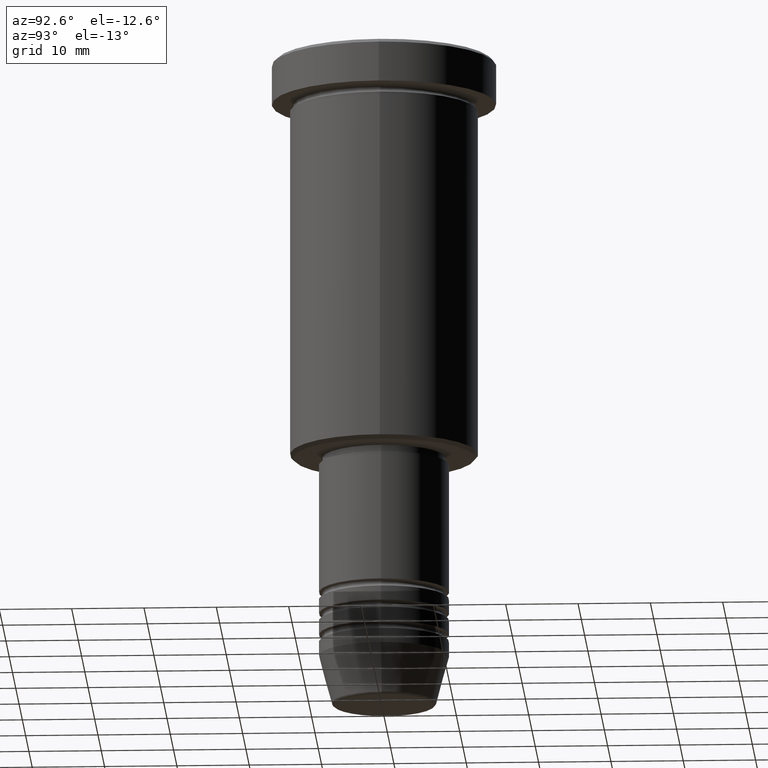
[diagram: clean part render]
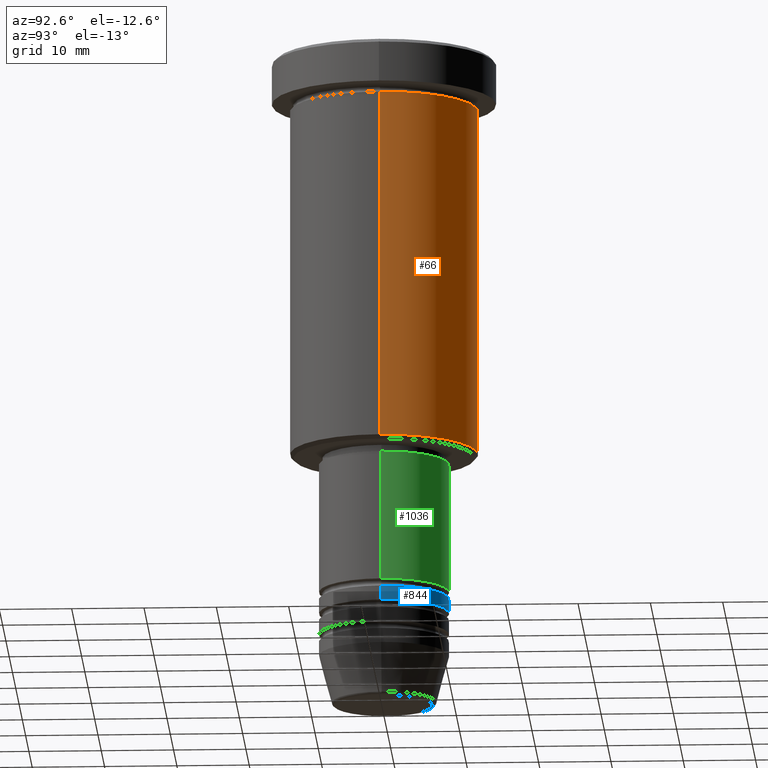
[diagram: same view with three faces highlighted in distinct colors, each labeled with its STEP entity id]
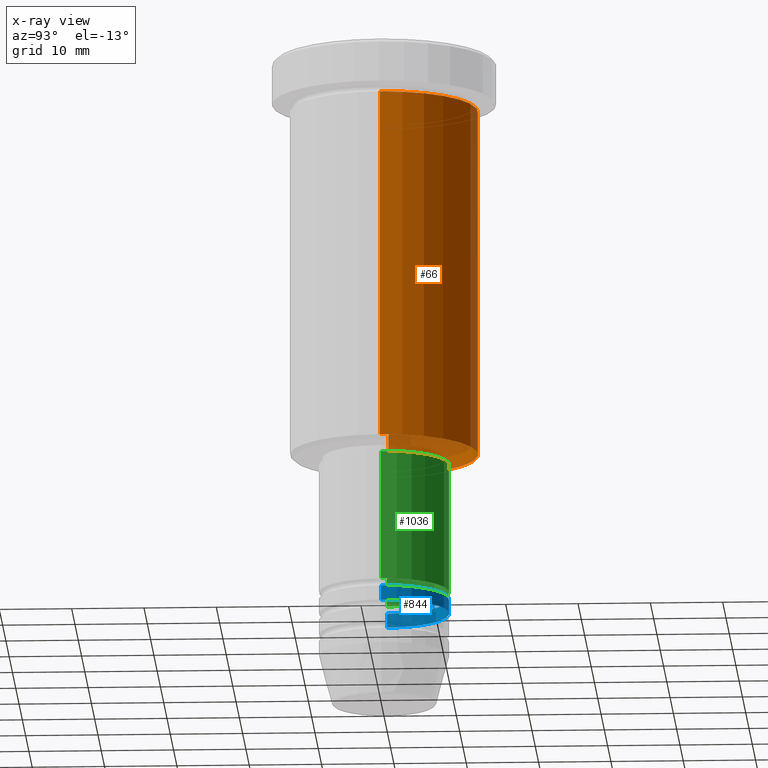
[diagram: x-ray of the same camera — body ghosted, the three highlighted faces saturated]
A machine part, auxiliary view with three faces highlighted in distinct colors.
The next image is the same camera in x-ray (body ghosted, the three faces saturated) — at least one of them is partly hidden behind the body in this view.
Their STEP definitions:

[orange] entity #66 — the highlighted cylindrical surface (partial cylindrical patch) has radius 13 mm, axis along (-0, -0, 1).
#2 = CARTESIAN_POINT ( 'NONE',  ( 0.000000000000000000, 0.000000000000000000, -55.50000000000002132 ) ) ;
#11 = EDGE_LOOP ( 'NONE', ( #40, #740, #402, #649 ) ) ;
#40 = ORIENTED_EDGE ( 'NONE', *, *, #225, .T. ) ;
#51 = DIRECTION ( 'NONE',  ( 1.000000000000000000, 0.000000000000000000, 0.000000000000000000 ) ) ;
#66 = ADVANCED_FACE ( 'NONE', ( #680 ), #704, .T. ) ;
#89 = DIRECTION ( 'NONE',  ( -0.000000000000000000, -0.000000000000000000, 1.000000000000000000 ) ) ;
#94 = DIRECTION ( 'NONE',  ( -1.000000000000000000, 0.000000000000000000, 0.000000000000000000 ) ) ;
#145 = AXIS2_PLACEMENT_3D ( 'NONE', #1164, #417, #776 ) ;
#169 = VERTEX_POINT ( 'NONE', #820 ) ;
#214 = CARTESIAN_POINT ( 'NONE',  ( 13.00000000000000000, 0.000000000000000000, 0.000000000000000000 ) ) ;
#218 = VECTOR ( 'NONE', #89, 1000.000000000000000 ) ;
#225 = EDGE_CURVE ( 'NONE', #638, #660, #435, .T. ) ;
#297 = CARTESIAN_POINT ( 'NONE',  ( -13.00000000000000000, 1.592040838891559095E-15, -55.50000000000002132 ) ) ;
#369 = DIRECTION ( 'NONE',  ( -0.000000000000000000, -0.000000000000000000, 1.000000000000000000 ) ) ;
#393 = AXIS2_PLACEMENT_3D ( 'NONE', #2, #369, #94 ) ;
#402 = ORIENTED_EDGE ( 'NONE', *, *, #951, .F. ) ;
#417 = DIRECTION ( 'NONE',  ( -0.000000000000000000, -0.000000000000000000, 1.000000000000000000 ) ) ;
#435 = CIRCLE ( 'NONE', #393, 13.00000000000000000 ) ;
#557 = VERTEX_POINT ( 'NONE', #1119 ) ;
#577 = DIRECTION ( 'NONE',  ( -0.000000000000000000, -0.000000000000000000, 1.000000000000000000 ) ) ;
#616 = LINE ( 'NONE', #913, #218 ) ;
#620 = CIRCLE ( 'NONE', #145, 13.00000000000000000 ) ;
#637 = EDGE_CURVE ( 'NONE', #660, #169, #616, .T. ) ;
#638 = VERTEX_POINT ( 'NONE', #678 ) ;
#649 = ORIENTED_EDGE ( 'NONE', *, *, #712, .F. ) ;
#660 = VERTEX_POINT ( 'NONE', #297 ) ;
#678 = CARTESIAN_POINT ( 'NONE',  ( 13.00000000000000000, 0.000000000000000000, -55.50000000000002132 ) ) ;
#680 = FACE_OUTER_BOUND ( 'NONE', #11, .T. ) ;
#692 = VECTOR ( 'NONE', #577, 1000.000000000000000 ) ;
#704 = CYLINDRICAL_SURFACE ( 'NONE', #941, 13.00000000000000000 ) ;
#712 = EDGE_CURVE ( 'NONE', #638, #557, #1025, .T. ) ;
#740 = ORIENTED_EDGE ( 'NONE', *, *, #637, .T. ) ;
#776 = DIRECTION ( 'NONE',  ( 1.000000000000000000, 0.000000000000000000, 0.000000000000000000 ) ) ;
#820 = CARTESIAN_POINT ( 'NONE',  ( -13.00000000000000000, 1.592040838891559095E-15, -6.999999999999995559 ) ) ;
#913 = CARTESIAN_POINT ( 'NONE',  ( -13.00000000000000000, 1.592040838891559095E-15, 0.000000000000000000 ) ) ;
#941 = AXIS2_PLACEMENT_3D ( 'NONE', #1070, #983, #51 ) ;
#951 = EDGE_CURVE ( 'NONE', #557, #169, #620, .T. ) ;
#983 = DIRECTION ( 'NONE',  ( -0.000000000000000000, -0.000000000000000000, 1.000000000000000000 ) ) ;
#1025 = LINE ( 'NONE', #214, #692 ) ;
#1070 = CARTESIAN_POINT ( 'NONE',  ( 0.000000000000000000, 0.000000000000000000, 0.000000000000000000 ) ) ;
#1119 = CARTESIAN_POINT ( 'NONE',  ( 13.00000000000000000, 0.000000000000000000, -6.999999999999995559 ) ) ;
#1164 = CARTESIAN_POINT ( 'NONE',  ( 0.000000000000000000, 0.000000000000000000, -6.999999999999995559 ) ) ;

[blue] entity #844 — the highlighted cylindrical surface (partial cylindrical patch) has radius 9 mm, axis along (-0, -0, 1).
#43 = VECTOR ( 'NONE', #366, 1000.000000000000000 ) ;
#58 = ORIENTED_EDGE ( 'NONE', *, *, #97, .T. ) ;
#74 = CARTESIAN_POINT ( 'NONE',  ( 9.000000000000000000, 0.000000000000000000, -77.99999999999998579 ) ) ;
#77 = DIRECTION ( 'NONE',  ( -0.000000000000000000, -0.000000000000000000, 1.000000000000000000 ) ) ;
#88 = CARTESIAN_POINT ( 'NONE',  ( 9.000000000000000000, 0.000000000000000000, 0.000000000000000000 ) ) ;
#97 = EDGE_CURVE ( 'NONE', #841, #1122, #726, .T. ) ;
#113 = CARTESIAN_POINT ( 'NONE',  ( -9.000000000000000000, 1.102182119232617714E-15, -77.99999999999998579 ) ) ;
#131 = CARTESIAN_POINT ( 'NONE',  ( 0.000000000000000000, 0.000000000000000000, -75.99999999999998579 ) ) ;
#146 = CARTESIAN_POINT ( 'NONE',  ( 9.000000000000000000, 0.000000000000000000, -75.99999999999998579 ) ) ;
#150 = CARTESIAN_POINT ( 'NONE',  ( 0.000000000000000000, 0.000000000000000000, 0.000000000000000000 ) ) ;
#155 = LINE ( 'NONE', #88, #791 ) ;
#235 = AXIS2_PLACEMENT_3D ( 'NONE', #997, #77, #735 ) ;
#242 = DIRECTION ( 'NONE',  ( 1.000000000000000000, 0.000000000000000000, 0.000000000000000000 ) ) ;
#342 = DIRECTION ( 'NONE',  ( -0.000000000000000000, -0.000000000000000000, 1.000000000000000000 ) ) ;
#366 = DIRECTION ( 'NONE',  ( -0.000000000000000000, -0.000000000000000000, 1.000000000000000000 ) ) ;
#388 = EDGE_CURVE ( 'NONE', #1122, #777, #621, .T. ) ;
#407 = ORIENTED_EDGE ( 'NONE', *, *, #388, .T. ) ;
#499 = CYLINDRICAL_SURFACE ( 'NONE', #946, 9.000000000000000000 ) ;
#543 = AXIS2_PLACEMENT_3D ( 'NONE', #131, #860, #1113 ) ;
#621 = LINE ( 'NONE', #627, #43 ) ;
#627 = CARTESIAN_POINT ( 'NONE',  ( -9.000000000000000000, 1.102182119232617714E-15, 0.000000000000000000 ) ) ;
#659 = EDGE_CURVE ( 'NONE', #890, #777, #829, .T. ) ;
#664 = EDGE_LOOP ( 'NONE', ( #58, #407, #846, #1147 ) ) ;
#676 = FACE_OUTER_BOUND ( 'NONE', #664, .T. ) ;
#726 = CIRCLE ( 'NONE', #235, 9.000000000000000000 ) ;
#735 = DIRECTION ( 'NONE',  ( 1.000000000000000000, 0.000000000000000000, 0.000000000000000000 ) ) ;
#777 = VERTEX_POINT ( 'NONE', #1162 ) ;
#791 = VECTOR ( 'NONE', #888, 1000.000000000000000 ) ;
#829 = CIRCLE ( 'NONE', #543, 9.000000000000000000 ) ;
#841 = VERTEX_POINT ( 'NONE', #74 ) ;
#843 = EDGE_CURVE ( 'NONE', #841, #890, #155, .T. ) ;
#844 = ADVANCED_FACE ( 'NONE', ( #676 ), #499, .T. ) ;
#846 = ORIENTED_EDGE ( 'NONE', *, *, #659, .F. ) ;
#860 = DIRECTION ( 'NONE',  ( -0.000000000000000000, -0.000000000000000000, 1.000000000000000000 ) ) ;
#888 = DIRECTION ( 'NONE',  ( -0.000000000000000000, -0.000000000000000000, 1.000000000000000000 ) ) ;
#890 = VERTEX_POINT ( 'NONE', #146 ) ;
#946 = AXIS2_PLACEMENT_3D ( 'NONE', #150, #342, #242 ) ;
#997 = CARTESIAN_POINT ( 'NONE',  ( 0.000000000000000000, 0.000000000000000000, -77.99999999999998579 ) ) ;
#1113 = DIRECTION ( 'NONE',  ( 1.000000000000000000, 0.000000000000000000, 0.000000000000000000 ) ) ;
#1122 = VERTEX_POINT ( 'NONE', #113 ) ;
#1147 = ORIENTED_EDGE ( 'NONE', *, *, #843, .F. ) ;
#1162 = CARTESIAN_POINT ( 'NONE',  ( -9.000000000000000000, 1.102182119232617714E-15, -75.99999999999998579 ) ) ;

[green] entity #1036 — the highlighted cylindrical surface (partial cylindrical patch) has radius 9 mm, axis along (-0, -0, 1).
#5 = FACE_OUTER_BOUND ( 'NONE', #1099, .T. ) ;
#12 = DIRECTION ( 'NONE',  ( -0.000000000000000000, -0.000000000000000000, 1.000000000000000000 ) ) ;
#21 = ORIENTED_EDGE ( 'NONE', *, *, #862, .T. ) ;
#29 = CARTESIAN_POINT ( 'NONE',  ( -9.000000000000000000, 1.102182119232617714E-15, -57.00000000000000000 ) ) ;
#76 = DIRECTION ( 'NONE',  ( 1.000000000000000000, 0.000000000000000000, 0.000000000000000000 ) ) ;
#90 = CARTESIAN_POINT ( 'NONE',  ( 9.000000000000000000, 0.000000000000000000, -57.00000000000000000 ) ) ;
#156 = CARTESIAN_POINT ( 'NONE',  ( 0.000000000000000000, 0.000000000000000000, -74.99999999999998579 ) ) ;
#191 = CARTESIAN_POINT ( 'NONE',  ( 0.000000000000000000, 0.000000000000000000, 0.000000000000000000 ) ) ;
#197 = EDGE_CURVE ( 'NONE', #1035, #757, #535, .T. ) ;
#222 = VERTEX_POINT ( 'NONE', #90 ) ;
#263 = CARTESIAN_POINT ( 'NONE',  ( -9.000000000000000000, 1.102182119232617714E-15, -74.99999999999998579 ) ) ;
#316 = CIRCLE ( 'NONE', #470, 9.000000000000000000 ) ;
#373 = DIRECTION ( 'NONE',  ( -0.000000000000000000, -0.000000000000000000, 1.000000000000000000 ) ) ;
#397 = CARTESIAN_POINT ( 'NONE',  ( 9.000000000000000000, 0.000000000000000000, 0.000000000000000000 ) ) ;
#447 = ORIENTED_EDGE ( 'NONE', *, *, #770, .F. ) ;
#463 = EDGE_CURVE ( 'NONE', #222, #757, #825, .T. ) ;
#470 = AXIS2_PLACEMENT_3D ( 'NONE', #156, #1157, #612 ) ;
#535 = LINE ( 'NONE', #631, #541 ) ;
#541 = VECTOR ( 'NONE', #991, 1000.000000000000000 ) ;
#612 = DIRECTION ( 'NONE',  ( 1.000000000000000000, 0.000000000000000000, 0.000000000000000000 ) ) ;
#617 = AXIS2_PLACEMENT_3D ( 'NONE', #729, #12, #645 ) ;
#631 = CARTESIAN_POINT ( 'NONE',  ( -9.000000000000000000, 1.102182119232617714E-15, 0.000000000000000000 ) ) ;
#645 = DIRECTION ( 'NONE',  ( 1.000000000000000000, 0.000000000000000000, 0.000000000000000000 ) ) ;
#729 = CARTESIAN_POINT ( 'NONE',  ( 0.000000000000000000, 0.000000000000000000, -57.00000000000000000 ) ) ;
#751 = DIRECTION ( 'NONE',  ( -0.000000000000000000, -0.000000000000000000, 1.000000000000000000 ) ) ;
#756 = LINE ( 'NONE', #397, #1136 ) ;
#757 = VERTEX_POINT ( 'NONE', #29 ) ;
#770 = EDGE_CURVE ( 'NONE', #1108, #222, #756, .T. ) ;
#825 = CIRCLE ( 'NONE', #617, 9.000000000000000000 ) ;
#862 = EDGE_CURVE ( 'NONE', #1108, #1035, #316, .T. ) ;
#895 = AXIS2_PLACEMENT_3D ( 'NONE', #191, #373, #76 ) ;
#937 = CARTESIAN_POINT ( 'NONE',  ( 9.000000000000000000, 0.000000000000000000, -74.99999999999998579 ) ) ;
#964 = ORIENTED_EDGE ( 'NONE', *, *, #197, .T. ) ;
#991 = DIRECTION ( 'NONE',  ( -0.000000000000000000, -0.000000000000000000, 1.000000000000000000 ) ) ;
#1035 = VERTEX_POINT ( 'NONE', #263 ) ;
#1036 = ADVANCED_FACE ( 'NONE', ( #5 ), #1098, .T. ) ;
#1054 = ORIENTED_EDGE ( 'NONE', *, *, #463, .F. ) ;
#1098 = CYLINDRICAL_SURFACE ( 'NONE', #895, 9.000000000000000000 ) ;
#1099 = EDGE_LOOP ( 'NONE', ( #21, #964, #1054, #447 ) ) ;
#1108 = VERTEX_POINT ( 'NONE', #937 ) ;
#1136 = VECTOR ( 'NONE', #751, 1000.000000000000000 ) ;
#1157 = DIRECTION ( 'NONE',  ( -0.000000000000000000, -0.000000000000000000, 1.000000000000000000 ) ) ;